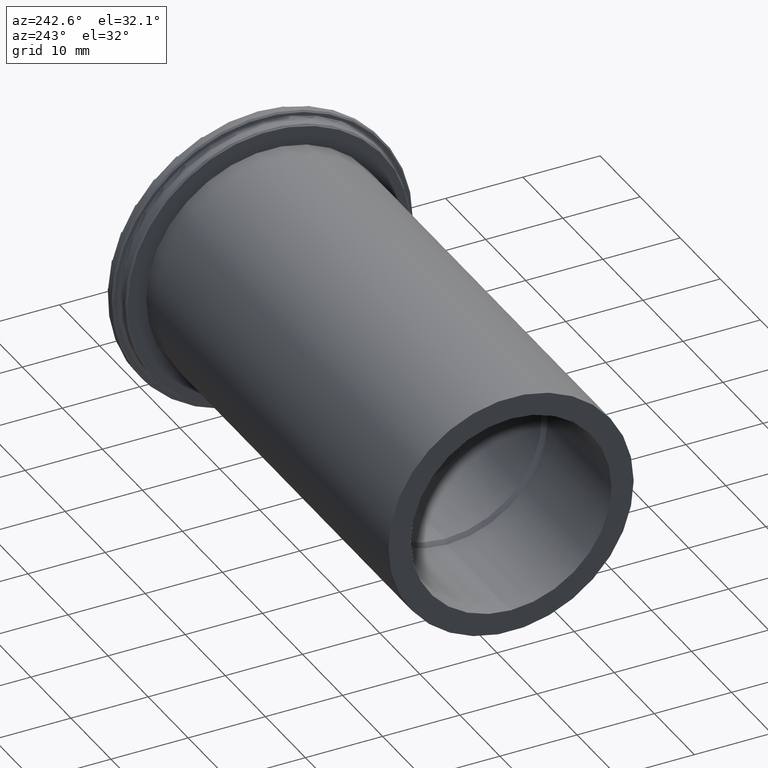
[diagram: clean part render]
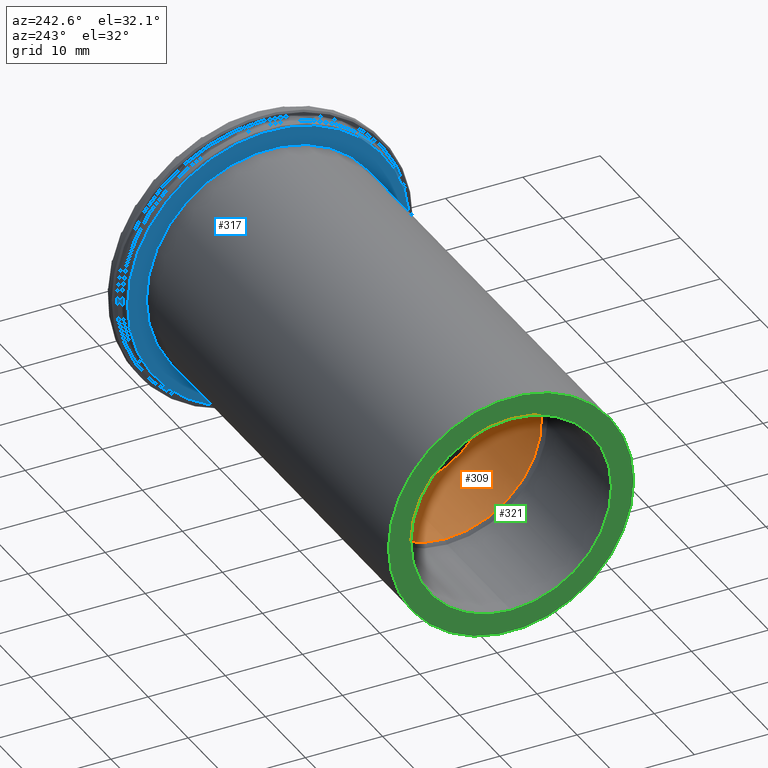
[diagram: same view with three faces highlighted in distinct colors, each labeled with its STEP entity id]
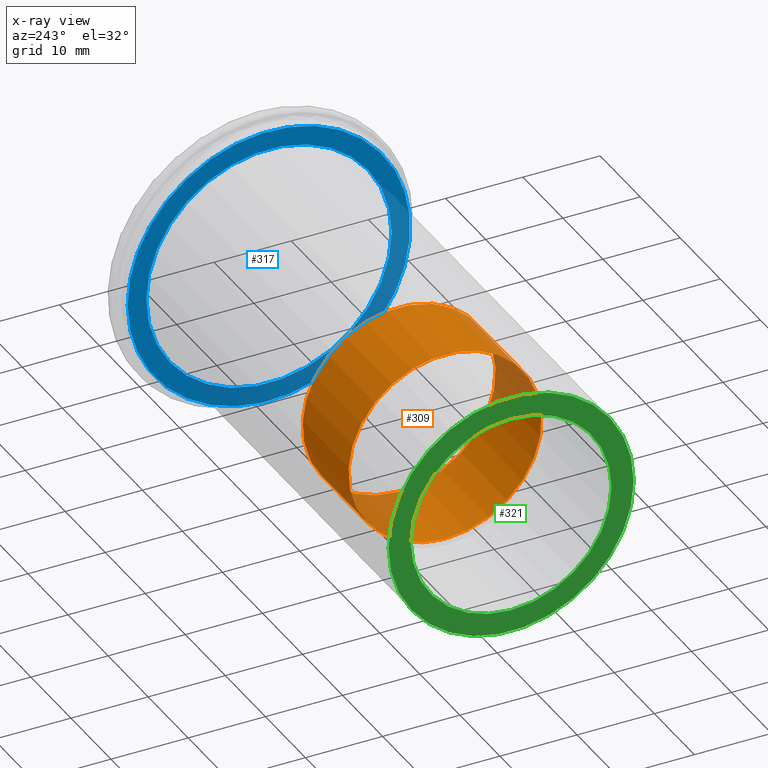
[diagram: x-ray of the same camera — body ghosted, the three highlighted faces saturated]
A machine part, auxiliary view with three faces highlighted in distinct colors.
The next image is the same camera in x-ray (body ghosted, the three faces saturated) — at least one of them is partly hidden behind the body in this view.
Their STEP definitions:

[orange] entity #309 — the highlighted cylindrical surface (bore or boss wall) has radius 12.5 mm, axis along (-1, 0, 0).
#101=FACE_OUTER_BOUND('',#117,.T.);
#117=EDGE_LOOP('',(#245,#246,#247,#248));
#137=LINE('',#539,#147);
#147=VECTOR('',#421,12.5);
#158=CIRCLE('',#351,12.5);
#159=CIRCLE('',#353,12.5);
#184=VERTEX_POINT('',#533);
#185=VERTEX_POINT('',#537);
#206=EDGE_CURVE('',#184,#184,#158,.T.);
#208=EDGE_CURVE('',#185,#185,#159,.T.);
#209=EDGE_CURVE('',#185,#184,#137,.T.);
#245=ORIENTED_EDGE('',*,*,#208,.F.);
#246=ORIENTED_EDGE('',*,*,#209,.T.);
#247=ORIENTED_EDGE('',*,*,#206,.F.);
#248=ORIENTED_EDGE('',*,*,#209,.F.);
#302=CYLINDRICAL_SURFACE('',#352,12.5);
#309=ADVANCED_FACE('',(#101),#302,.F.);
#351=AXIS2_PLACEMENT_3D('',#534,#414,#415);
#352=AXIS2_PLACEMENT_3D('',#536,#417,#418);
#353=AXIS2_PLACEMENT_3D('',#538,#419,#420);
#414=DIRECTION('center_axis',(-1.,0.,0.));
#415=DIRECTION('ref_axis',(0.,0.,1.));
#417=DIRECTION('center_axis',(-1.,0.,0.));
#418=DIRECTION('ref_axis',(0.,0.,1.));
#419=DIRECTION('center_axis',(1.,0.,0.));
#420=DIRECTION('ref_axis',(0.,0.,1.));
#421=DIRECTION('',(1.,0.,0.));
#533=CARTESIAN_POINT('',(-35.5,-1.53080849893419E-15,-12.5));
#534=CARTESIAN_POINT('Origin',(-35.5,0.,0.));
#536=CARTESIAN_POINT('Origin',(-49.5,0.,0.));
#537=CARTESIAN_POINT('',(-47.,1.53080849893419E-15,-12.5));
#538=CARTESIAN_POINT('Origin',(-47.,0.,0.));
#539=CARTESIAN_POINT('',(-49.5,-1.53080849893419E-15,-12.5));

[blue] entity #317 — the highlighted planar face has unit normal (-1, 0, 0).
#88=FACE_BOUND('',#127,.T.);
#92=PLANE('',#374);
#109=FACE_OUTER_BOUND('',#126,.T.);
#126=EDGE_LOOP('',(#281));
#127=EDGE_LOOP('',(#282));
#170=CIRCLE('',#370,18.3);
#173=CIRCLE('',#375,15.875);
#196=VERTEX_POINT('',#570);
#199=VERTEX_POINT('',#580);
#225=EDGE_CURVE('',#196,#196,#170,.T.);
#229=EDGE_CURVE('',#199,#199,#173,.T.);
#281=ORIENTED_EDGE('',*,*,#225,.F.);
#282=ORIENTED_EDGE('',*,*,#229,.T.);
#317=ADVANCED_FACE('',(#109,#88),#92,.T.);
#370=AXIS2_PLACEMENT_3D('',#572,#459,#460);
#374=AXIS2_PLACEMENT_3D('',#579,#468,#469);
#375=AXIS2_PLACEMENT_3D('',#581,#470,#471);
#459=DIRECTION('center_axis',(1.,0.,0.));
#460=DIRECTION('ref_axis',(0.,-1.,0.));
#468=DIRECTION('center_axis',(-1.,0.,0.));
#469=DIRECTION('ref_axis',(0.,0.,1.));
#470=DIRECTION('center_axis',(1.,0.,0.));
#471=DIRECTION('ref_axis',(0.,0.,-1.));
#570=CARTESIAN_POINT('',(-3.,18.3,2.24110364243966E-15));
#572=CARTESIAN_POINT('Origin',(-3.,0.,0.));
#579=CARTESIAN_POINT('Origin',(-3.,18.5,0.));
#580=CARTESIAN_POINT('',(-2.99999999999997,-15.875,-1.94412679364642E-15));
#581=CARTESIAN_POINT('Origin',(-2.99999999999997,0.,0.));

[green] entity #321 — the highlighted planar face has unit normal (-1, 0, 0).
#90=FACE_BOUND('',#133,.T.);
#94=PLANE('',#382);
#113=FACE_OUTER_BOUND('',#132,.T.);
#132=EDGE_LOOP('',(#295));
#133=EDGE_LOOP('',(#296));
#161=CIRCLE('',#357,13.);
#177=CIRCLE('',#383,15.875);
#187=VERTEX_POINT('',#545);
#201=VERTEX_POINT('',#590);
#212=EDGE_CURVE('',#187,#187,#161,.T.);
#233=EDGE_CURVE('',#201,#201,#177,.T.);
#295=ORIENTED_EDGE('',*,*,#233,.F.);
#296=ORIENTED_EDGE('',*,*,#212,.T.);
#321=ADVANCED_FACE('',(#113,#90),#94,.T.);
#357=AXIS2_PLACEMENT_3D('',#546,#429,#430);
#382=AXIS2_PLACEMENT_3D('',#589,#484,#485);
#383=AXIS2_PLACEMENT_3D('',#591,#486,#487);
#429=DIRECTION('center_axis',(1.,0.,0.));
#430=DIRECTION('ref_axis',(0.,0.,1.));
#484=DIRECTION('center_axis',(-1.,0.,0.));
#485=DIRECTION('ref_axis',(0.,0.,1.));
#486=DIRECTION('center_axis',(1.,0.,0.));
#487=DIRECTION('ref_axis',(0.,0.,-1.));
#545=CARTESIAN_POINT('',(-63.5,-1.59204083889156E-15,-13.));
#546=CARTESIAN_POINT('Origin',(-63.5,0.,0.));
#589=CARTESIAN_POINT('Origin',(-63.5,15.875,0.));
#590=CARTESIAN_POINT('',(-63.5,-15.875,-1.94412679364642E-15));
#591=CARTESIAN_POINT('Origin',(-63.5,0.,0.));